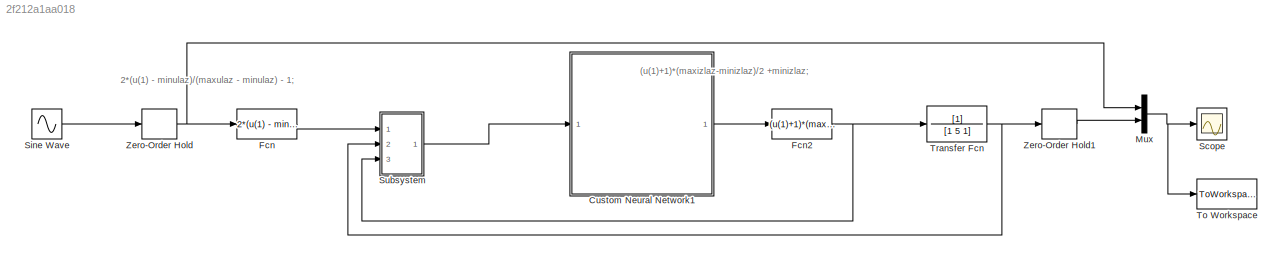
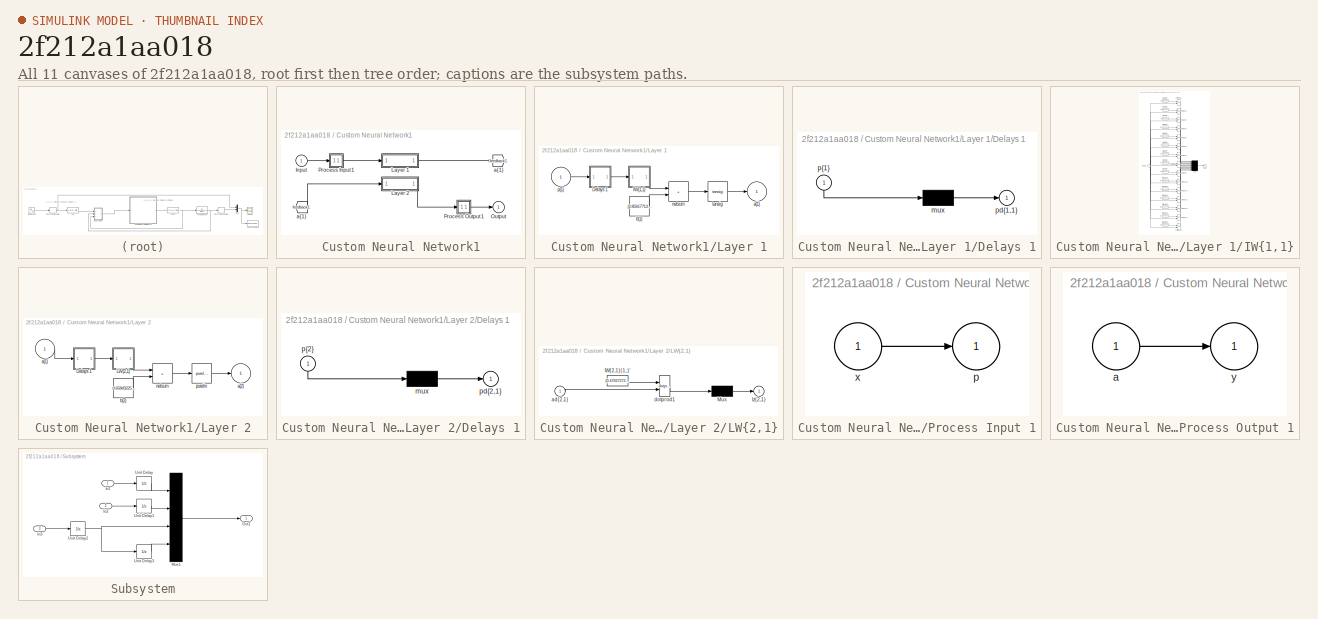
[diagram: thumbnail index - all 11 canvases of the model, root first then tree order]
MODEL slx_2f212a1aa018
KIND model
CONFIG AbsTol = auto
CONFIG EnableMultiTasking = off
CONFIG FixedStep = auto
CONFIG MaxStep = auto
CONFIG MinStep = auto
CONFIG RelTol = 1e-3
CONFIG SampleTimeConstraint = Unconstrained
CONFIG Solver = VariableStepAuto
CONFIG SolverName = VariableStepAuto
CONFIG StartTime = 0.0
CONFIG StopTime = 100
BLOCK [SubSystem] Custom Neural Network1
  Ports = [1, 1]
  RequestExecContextInheritance = off
BLOCK [From] Custom Neural Network1/ a{1} 
  GotoTag = feedback1
BLOCK [Inport] Custom Neural Network1/Input
  PortDimensions = 4
BLOCK [SubSystem] Custom Neural Network1/Layer 1
  Ports = [1, 1]
  RequestExecContextInheritance = off
BLOCK [SubSystem] Custom Neural Network1/Layer 1/Delays 1
  Ports = [1, 1]
  RequestExecContextInheritance = off
BLOCK [Mux] Custom Neural Network1/Layer 1/Delays 1/mux
  Inputs = 1
  Ports = [1, 1]
BLOCK [Outport] Custom Neural Network1/Layer 1/Delays 1/pd{1,1}
BLOCK [Inport] Custom Neural Network1/Layer 1/Delays 1/p{1}
  NameLocation = left
  PortDimensions = 4
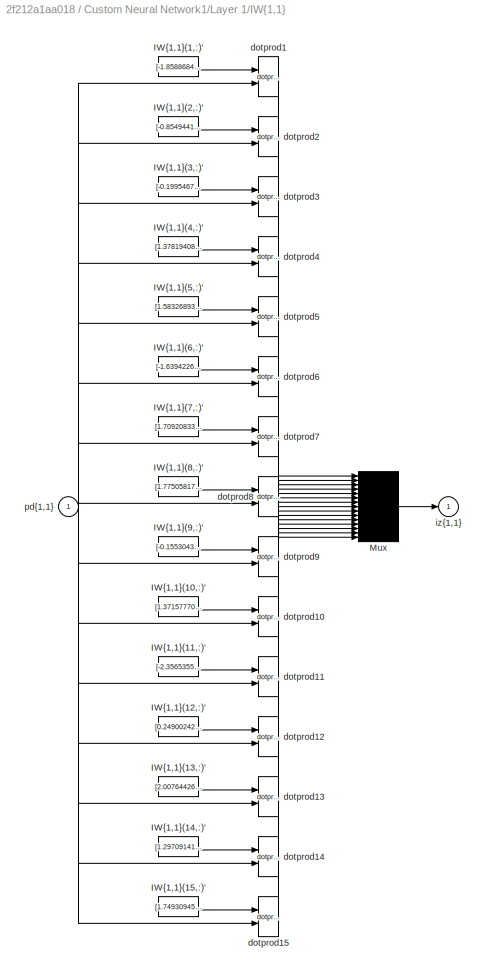
BLOCK [SubSystem] Custom Neural Network1/Layer 1/IW{1,1}
  Ports = [1, 1]
  RequestExecContextInheritance = off
BLOCK [Constant] Custom Neural Network1/Layer 1/IW{1,1}/IW{1,1}(1,:)'
  Value = [-1.85886840076805270882687182165682315826416015625;0.7727313637661747947049661888740956783294677734375;1.5671050239411388194099572501727379858493804931640625;-1.00245148982260712244851674768142402172088623046875]
BLOCK [Constant] Custom Neural Network1/Layer 1/IW{1,1}/IW{1,1}(10,:)'
  Value = [1.371577707021575331935991926002316176891326904296875;-1.4818581613467667335015676144394092261791229248046875;-1.4389971342347023242069781190366484224796295166015625;-1.11165116329290736274515438708476722240447998046875]
BLOCK [Constant] Custom Neural Network1/Layer 1/IW{1,1}/IW{1,1}(11,:)'
  Value = [-2.35653559399774881200073650688864290714263916015625;0.8651468489437619258097811325569637119770050048828125;-0.24336657567446995376059248883393593132495880126953125;1.160669847687730626972779646166600286960601806640625]
BLOCK [Constant] Custom Neural Network1/Layer 1/IW{1,1}/IW{1,1}(12,:)'
  Value = [0.24900242412155415561159088611020706593990325927734375;-1.7407651166176467683044393197633326053619384765625;-0.11526602097109499289739886762617970816791057586669921875;-1.118584207594488955095357596292160451412200927734375]
BLOCK [Constant] Custom Neural Network1/Layer 1/IW{1,1}/IW{1,1}(13,:)'
  Value = [2.00764426213082192163028594222851097583770751953125;-1.5596245818035725516637057808111421763896942138671875;0.68178496860637161081086787817184813320636749267578125;-0.08610576420403333319786298716280725784599781036376953125]
BLOCK [Constant] Custom Neural Network1/Layer 1/IW{1,1}/IW{1,1}(14,:)'
  Value = [1.29709141406278671837526417220942676067352294921875;-2.052239872283880828263136208988726139068603515625;0.6958292802997976256307310904958285391330718994140625;0.64604482025001053191459732261137105524539947509765625]
BLOCK [Constant] Custom Neural Network1/Layer 1/IW{1,1}/IW{1,1}(15,:)'
  Value = [1.7493094565411160257184519650763832032680511474609375;-1.3383549148256432825832007438293658196926116943359375;0.8888910426613245707727628541761077940464019775390625;1.3797909203194791416535736061632633209228515625]
BLOCK [Constant] Custom Neural Network1/Layer 1/IW{1,1}/IW{1,1}(2,:)'
  Value = [-0.854944101703656311741497120237909257411956787109375;-2.0181017959365750158440278028137981891632080078125;1.2844544079982507245318856803351081907749176025390625;1.21236426063586844037445189314894378185272216796875]
BLOCK [Constant] Custom Neural Network1/Layer 1/IW{1,1}/IW{1,1}(3,:)'
  Value = [-0.19954671494065745473989181846263818442821502685546875;1.74364656144823726435788557864725589752197265625;-1.0462541393621818119896715870709158480167388916015625;1.088731121046819350084433608571998775005340576171875]
BLOCK [Constant] Custom Neural Network1/Layer 1/IW{1,1}/IW{1,1}(4,:)'
  Value = [1.378194084099750416072538428124971687793731689453125;1.3077044405737134891154482829733751714229583740234375;1.302752937220793771899707280681468546390533447265625;-1.29753501528241432794175125309266149997711181640625]
BLOCK [Constant] Custom Neural Network1/Layer 1/IW{1,1}/IW{1,1}(5,:)'
  Value = [1.583268935300181201597524704993702471256256103515625;0.57261414749949235414305803715251386165618896484375;-1.5772514104129202738846515785553492605686187744140625;-1.2981368318279773443890690032276324927806854248046875]
BLOCK [Constant] Custom Neural Network1/Layer 1/IW{1,1}/IW{1,1}(6,:)'
  Value = [-1.6394226422302242696105167851783335208892822265625;2.153007919390976798723613683250732719898223876953125;-0.286804191203348601835187992037390358746051788330078125;0.39572240192895036248188489480526186525821685791015625]
BLOCK [Constant] Custom Neural Network1/Layer 1/IW{1,1}/IW{1,1}(7,:)'
  Value = [1.7092083309629659826356373741873539984226226806640625;0.83066163455131458714930658970843069255352020263671875;-0.1962658754182700360235713787915301509201526641845703125;1.9196442664466004668355481044272892177104949951171875]
BLOCK [Constant] Custom Neural Network1/Layer 1/IW{1,1}/IW{1,1}(8,:)'
  Value = [1.7750581738165400746964905920322053134441375732421875;-1.184043996768628037585813217447139322757720947265625;0.1094454799692407831468443646372179500758647918701171875;-0.11594682220914841186409915962940431199967861175537109375]
BLOCK [Constant] Custom Neural Network1/Layer 1/IW{1,1}/IW{1,1}(9,:)'
  Value = [-0.15530435683804066915314479047083295881748199462890625;1.220523226752049605892125327955000102519989013671875;2.34637708383834020509084439254365861415863037109375;0.50161552584053337167091513038030825555324554443359375]
BLOCK [Mux] Custom Neural Network1/Layer 1/IW{1,1}/Mux
  Inputs = 15
  Ports = [15, 1]
BLOCK [Reference] Custom Neural Network1/Layer 1/IW{1,1}/dotprod1  REF=neural/Weight Functions/dotprod
  Ports = [2, 1]
  SourceBlock = neural/Weight Functions/dotprod
  SourceProductBaseCode = NN
  SourceType = DOTPROD
BLOCK [Reference] Custom Neural Network1/Layer 1/IW{1,1}/dotprod10  REF=neural/Weight Functions/dotprod
  Ports = [2, 1]
  SourceBlock = neural/Weight Functions/dotprod
  SourceProductBaseCode = NN
  SourceType = DOTPROD
BLOCK [Reference] Custom Neural Network1/Layer 1/IW{1,1}/dotprod11  REF=neural/Weight Functions/dotprod
  Ports = [2, 1]
  SourceBlock = neural/Weight Functions/dotprod
  SourceProductBaseCode = NN
  SourceType = DOTPROD
BLOCK [Reference] Custom Neural Network1/Layer 1/IW{1,1}/dotprod12  REF=neural/Weight Functions/dotprod
  Ports = [2, 1]
  SourceBlock = neural/Weight Functions/dotprod
  SourceProductBaseCode = NN
  SourceType = DOTPROD
BLOCK [Reference] Custom Neural Network1/Layer 1/IW{1,1}/dotprod13  REF=neural/Weight Functions/dotprod
  Ports = [2, 1]
  SourceBlock = neural/Weight Functions/dotprod
  SourceProductBaseCode = NN
  SourceType = DOTPROD
BLOCK [Reference] Custom Neural Network1/Layer 1/IW{1,1}/dotprod14  REF=neural/Weight Functions/dotprod
  Ports = [2, 1]
  SourceBlock = neural/Weight Functions/dotprod
  SourceProductBaseCode = NN
  SourceType = DOTPROD
BLOCK [Reference] Custom Neural Network1/Layer 1/IW{1,1}/dotprod15  REF=neural/Weight Functions/dotprod
  Ports = [2, 1]
  SourceBlock = neural/Weight Functions/dotprod
  SourceProductBaseCode = NN
  SourceType = DOTPROD
BLOCK [Reference] Custom Neural Network1/Layer 1/IW{1,1}/dotprod2  REF=neural/Weight Functions/dotprod
  Ports = [2, 1]
  SourceBlock = neural/Weight Functions/dotprod
  SourceProductBaseCode = NN
  SourceType = DOTPROD
BLOCK [Reference] Custom Neural Network1/Layer 1/IW{1,1}/dotprod3  REF=neural/Weight Functions/dotprod
  Ports = [2, 1]
  SourceBlock = neural/Weight Functions/dotprod
  SourceProductBaseCode = NN
  SourceType = DOTPROD
BLOCK [Reference] Custom Neural Network1/Layer 1/IW{1,1}/dotprod4  REF=neural/Weight Functions/dotprod
  Ports = [2, 1]
  SourceBlock = neural/Weight Functions/dotprod
  SourceProductBaseCode = NN
  SourceType = DOTPROD
BLOCK [Reference] Custom Neural Network1/Layer 1/IW{1,1}/dotprod5  REF=neural/Weight Functions/dotprod
  Ports = [2, 1]
  SourceBlock = neural/Weight Functions/dotprod
  SourceProductBaseCode = NN
  SourceType = DOTPROD
BLOCK [Reference] Custom Neural Network1/Layer 1/IW{1,1}/dotprod6  REF=neural/Weight Functions/dotprod
  Ports = [2, 1]
  SourceBlock = neural/Weight Functions/dotprod
  SourceProductBaseCode = NN
  SourceType = DOTPROD
BLOCK [Reference] Custom Neural Network1/Layer 1/IW{1,1}/dotprod7  REF=neural/Weight Functions/dotprod
  Ports = [2, 1]
  SourceBlock = neural/Weight Functions/dotprod
  SourceProductBaseCode = NN
  SourceType = DOTPROD
BLOCK [Reference] Custom Neural Network1/Layer 1/IW{1,1}/dotprod8  REF=neural/Weight Functions/dotprod
  Ports = [2, 1]
  SourceBlock = neural/Weight Functions/dotprod
  SourceProductBaseCode = NN
  SourceType = DOTPROD
BLOCK [Reference] Custom Neural Network1/Layer 1/IW{1,1}/dotprod9  REF=neural/Weight Functions/dotprod
  Ports = [2, 1]
  SourceBlock = neural/Weight Functions/dotprod
  SourceProductBaseCode = NN
  SourceType = DOTPROD
BLOCK [Outport] Custom Neural Network1/Layer 1/IW{1,1}/iz{1,1}
BLOCK [Inport] Custom Neural Network1/Layer 1/IW{1,1}/pd{1,1}
  PortDimensions = 4
BLOCK [Outport] Custom Neural Network1/Layer 1/a{1}
  InitialOutput = [0;0;0;0;0;0;0;0;0;0;0;0;0;0;0]
BLOCK [Constant] Custom Neural Network1/Layer 1/b{1}
  Value = [2.8561771300222034142279881052672863006591796875;2.180791428627662842387735508964397013187408447265625;-1.8841928418453928184561618763837032020092010498046875;-1.2515842022739047667556633314234204590320587158203125;-1.169543425604398390049709632876329123973846435546875;0.69360154133094253925406746930093504488468170166015625;-0.424884747143072394326424046084866859018802642822265625;0.0647214147343...<+433ch>
BLOCK [Sum] Custom Neural Network1/Layer 1/netsum
  IconShape = rectangular
  InputSameDT = on
  Inputs = 2
  OutDataTypeStr = Inherit: Same as first input
  Ports = [2, 1]
  SaturateOnIntegerOverflow = on
BLOCK [Inport] Custom Neural Network1/Layer 1/p{1}
  PortDimensions = 4
BLOCK [Reference] Custom Neural Network1/Layer 1/tansig  REF=neural/Transfer Functions/tansig
  Ports = [1, 1]
  SourceBlock = neural/Transfer Functions/tansig
  SourceProductBaseCode = NN
  SourceType = TANSIG
BLOCK [SubSystem] Custom Neural Network1/Layer 2
  Ports = [1, 1]
  RequestExecContextInheritance = off
BLOCK [SubSystem] Custom Neural Network1/Layer 2/Delays 1
  Ports = [1, 1]
  RequestExecContextInheritance = off
BLOCK [Mux] Custom Neural Network1/Layer 2/Delays 1/mux
  Inputs = 1
  Ports = [1, 1]
BLOCK [Outport] Custom Neural Network1/Layer 2/Delays 1/pd{2,1}
BLOCK [Inport] Custom Neural Network1/Layer 2/Delays 1/p{2}
  NameLocation = left
  PortDimensions = 15
BLOCK [SubSystem] Custom Neural Network1/Layer 2/LW{2,1}
  Ports = [1, 1]
  RequestExecContextInheritance = off
BLOCK [Constant] Custom Neural Network1/Layer 2/LW{2,1}/IW{2,1}(1,:)'
  Value = [0.478272726468320197312777963816188275814056396484375;0.00714313761076878529776568171882900060154497623443603515625;0.284086583707173712110005681097391061484813690185546875;0.018281760870019224396454404768519452773034572601318359375;0.0103267009373419170470409511608522734604775905609130859375;0.43195959296125130411070358604774810373783111572265625;-0.0034380815397924077703173395548219559714198112...<+487ch>
BLOCK [Mux] Custom Neural Network1/Layer 2/LW{2,1}/Mux
  Inputs = 1
  Ports = [1, 1]
BLOCK [Inport] Custom Neural Network1/Layer 2/LW{2,1}/ad{2,1}
  PortDimensions = 15
BLOCK [Reference] Custom Neural Network1/Layer 2/LW{2,1}/dotprod1  REF=neural/Weight Functions/dotprod
  Ports = [2, 1]
  SourceBlock = neural/Weight Functions/dotprod
  SourceProductBaseCode = NN
  SourceType = DOTPROD
BLOCK [Outport] Custom Neural Network1/Layer 2/LW{2,1}/lz{2,1}
BLOCK [Inport] Custom Neural Network1/Layer 2/a{1} 
  PortDimensions = 15
BLOCK [Outport] Custom Neural Network1/Layer 2/a{2}
  InitialOutput = 0
BLOCK [Constant] Custom Neural Network1/Layer 2/b{2}
  Value = -0.6584322562583591054163889566552825272083282470703125
BLOCK [Sum] Custom Neural Network1/Layer 2/netsum
  IconShape = rectangular
  InputSameDT = on
  Inputs = 2
  OutDataTypeStr = Inherit: Same as first input
  Ports = [2, 1]
  SaturateOnIntegerOverflow = on
BLOCK [Reference] Custom Neural Network1/Layer 2/purelin  REF=neural/Transfer Functions/purelin
  Ports = [1, 1]
  SourceBlock = neural/Transfer Functions/purelin
  SourceProductBaseCode = NN
  SourceType = PURELIN
BLOCK [Outport] Custom Neural Network1/Output
  InitialOutput = 0
BLOCK [SubSystem] Custom Neural Network1/Process Input 1
  Ports = [1, 1]
  RequestExecContextInheritance = off
BLOCK [Outport] Custom Neural Network1/Process Input 1/p
  PortDimensions = 4
BLOCK [Inport] Custom Neural Network1/Process Input 1/x
  PortDimensions = 4
BLOCK [SubSystem] Custom Neural Network1/Process Output 1
  Ports = [1, 1]
  RequestExecContextInheritance = off
BLOCK [Inport] Custom Neural Network1/Process Output 1/a
  PortDimensions = 1
BLOCK [Outport] Custom Neural Network1/Process Output 1/y
  PortDimensions = 1
BLOCK [Goto] Custom Neural Network1/a{1}
  GotoTag = feedback1
BLOCK [Fcn] Fcn
  Expr = 2*(u(1) - minulaz)/(maxulaz - minulaz) - 1;
BLOCK [Fcn] Fcn2
  Expr = (u(1)+1)*(maxizlaz-minizlaz)/2 +minizlaz;
BLOCK [Mux] Mux
  DisplayOption = bar
  Inputs = 2
  Ports = [2, 1]
BLOCK [Scope] Scope
  Floating = off
  NumInputPorts = 1
  Ports = [1]
  ScopeSpecificationString = Simulink.scopes.TimeScopeBlockCfg('CurrentConfiguration', extmgr.ConfigurationSet(extmgr.Configuration('Core','General UI',true),extmgr.Configuration('Core','Source UI',true),extmgr.Configuration('Sources','WiredSimulink',true,'DataLoggingSaveFormat','StructureWithTime','DataLoggingLimitDataPoints',true,'DataLoggingDecimation','1','DataLoggingDecimateData',true),extmgr.Configuration('Visuals','Tim...<+1668ch>
BLOCK [Sin] Sine Wave
  Amplitude = 2
  Frequency = 0.25
  Ports = [0, 1]
  SampleTime = 0.1
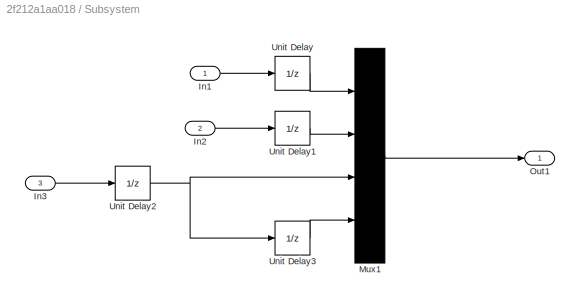
BLOCK [SubSystem] Subsystem
  Ports = [3, 1]
  RequestExecContextInheritance = off
BLOCK [Inport] Subsystem/In1
BLOCK [Inport] Subsystem/In2
  Port = 2
BLOCK [Inport] Subsystem/In3
  Port = 3
BLOCK [Mux] Subsystem/Mux1
  DisplayOption = bar
  Ports = [4, 1]
BLOCK [Outport] Subsystem/Out1
BLOCK [UnitDelay] Subsystem/Unit Delay
  HasFrameUpgradeWarning = on
  SampleTime = -1
BLOCK [UnitDelay] Subsystem/Unit Delay1
  HasFrameUpgradeWarning = on
  SampleTime = -1
BLOCK [UnitDelay] Subsystem/Unit Delay2
  HasFrameUpgradeWarning = on
  SampleTime = -1
BLOCK [UnitDelay] Subsystem/Unit Delay3
  HasFrameUpgradeWarning = on
  SampleTime = -1
BLOCK [ToWorkspace] To Workspace
  MaxDataPoints = inf
  Ports = [1]
  SampleTime = -1
  VariableName = y
BLOCK [TransferFcn] Transfer Fcn
  Denominator = [1 5 1]
BLOCK [ZeroOrderHold] Zero-Order Hold
  SampleTime = 0.1
BLOCK [ZeroOrderHold] Zero-Order Hold1
  SampleTime = 0.1
ANNOTATION (root): (u(1)+1)*(maxizlaz-minizlaz)/2 +minizlaz;
ANNOTATION (root): 2*(u(1) - minulaz)/(maxulaz - minulaz) - 1;
LINE Custom Neural Network1/ a{1} :1 -> Custom Neural Network1/Layer 2:1
LINE Custom Neural Network1/Input:1 -> Custom Neural Network1/Process Input 1:1
LINE Custom Neural Network1/Layer 1/Delays 1/mux:1 -> Custom Neural Network1/Layer 1/Delays 1/pd{1,1}:1
LINE Custom Neural Network1/Layer 1/Delays 1/p{1}:1 -> Custom Neural Network1/Layer 1/Delays 1/mux:1
LINE Custom Neural Network1/Layer 1/Delays 1:1 -> Custom Neural Network1/Layer 1/IW{1,1}:1
LINE Custom Neural Network1/Layer 1/IW{1,1}/IW{1,1}(1,:)':1 -> Custom Neural Network1/Layer 1/IW{1,1}/dotprod1:1
LINE Custom Neural Network1/Layer 1/IW{1,1}/IW{1,1}(10,:)':1 -> Custom Neural Network1/Layer 1/IW{1,1}/dotprod10:1
LINE Custom Neural Network1/Layer 1/IW{1,1}/IW{1,1}(11,:)':1 -> Custom Neural Network1/Layer 1/IW{1,1}/dotprod11:1
LINE Custom Neural Network1/Layer 1/IW{1,1}/IW{1,1}(12,:)':1 -> Custom Neural Network1/Layer 1/IW{1,1}/dotprod12:1
LINE Custom Neural Network1/Layer 1/IW{1,1}/IW{1,1}(13,:)':1 -> Custom Neural Network1/Layer 1/IW{1,1}/dotprod13:1
LINE Custom Neural Network1/Layer 1/IW{1,1}/IW{1,1}(14,:)':1 -> Custom Neural Network1/Layer 1/IW{1,1}/dotprod14:1
LINE Custom Neural Network1/Layer 1/IW{1,1}/IW{1,1}(15,:)':1 -> Custom Neural Network1/Layer 1/IW{1,1}/dotprod15:1
LINE Custom Neural Network1/Layer 1/IW{1,1}/IW{1,1}(2,:)':1 -> Custom Neural Network1/Layer 1/IW{1,1}/dotprod2:1
LINE Custom Neural Network1/Layer 1/IW{1,1}/IW{1,1}(3,:)':1 -> Custom Neural Network1/Layer 1/IW{1,1}/dotprod3:1
LINE Custom Neural Network1/Layer 1/IW{1,1}/IW{1,1}(4,:)':1 -> Custom Neural Network1/Layer 1/IW{1,1}/dotprod4:1
LINE Custom Neural Network1/Layer 1/IW{1,1}/IW{1,1}(5,:)':1 -> Custom Neural Network1/Layer 1/IW{1,1}/dotprod5:1
LINE Custom Neural Network1/Layer 1/IW{1,1}/IW{1,1}(6,:)':1 -> Custom Neural Network1/Layer 1/IW{1,1}/dotprod6:1
LINE Custom Neural Network1/Layer 1/IW{1,1}/IW{1,1}(7,:)':1 -> Custom Neural Network1/Layer 1/IW{1,1}/dotprod7:1
LINE Custom Neural Network1/Layer 1/IW{1,1}/IW{1,1}(8,:)':1 -> Custom Neural Network1/Layer 1/IW{1,1}/dotprod8:1
LINE Custom Neural Network1/Layer 1/IW{1,1}/IW{1,1}(9,:)':1 -> Custom Neural Network1/Layer 1/IW{1,1}/dotprod9:1
LINE Custom Neural Network1/Layer 1/IW{1,1}/Mux:1 -> Custom Neural Network1/Layer 1/IW{1,1}/iz{1,1}:1
LINE Custom Neural Network1/Layer 1/IW{1,1}/dotprod10:1 -> Custom Neural Network1/Layer 1/IW{1,1}/Mux:10
LINE Custom Neural Network1/Layer 1/IW{1,1}/dotprod11:1 -> Custom Neural Network1/Layer 1/IW{1,1}/Mux:11
LINE Custom Neural Network1/Layer 1/IW{1,1}/dotprod12:1 -> Custom Neural Network1/Layer 1/IW{1,1}/Mux:12
LINE Custom Neural Network1/Layer 1/IW{1,1}/dotprod13:1 -> Custom Neural Network1/Layer 1/IW{1,1}/Mux:13
LINE Custom Neural Network1/Layer 1/IW{1,1}/dotprod14:1 -> Custom Neural Network1/Layer 1/IW{1,1}/Mux:14
LINE Custom Neural Network1/Layer 1/IW{1,1}/dotprod15:1 -> Custom Neural Network1/Layer 1/IW{1,1}/Mux:15
LINE Custom Neural Network1/Layer 1/IW{1,1}/dotprod1:1 -> Custom Neural Network1/Layer 1/IW{1,1}/Mux:1
LINE Custom Neural Network1/Layer 1/IW{1,1}/dotprod2:1 -> Custom Neural Network1/Layer 1/IW{1,1}/Mux:2
LINE Custom Neural Network1/Layer 1/IW{1,1}/dotprod3:1 -> Custom Neural Network1/Layer 1/IW{1,1}/Mux:3
LINE Custom Neural Network1/Layer 1/IW{1,1}/dotprod4:1 -> Custom Neural Network1/Layer 1/IW{1,1}/Mux:4
LINE Custom Neural Network1/Layer 1/IW{1,1}/dotprod5:1 -> Custom Neural Network1/Layer 1/IW{1,1}/Mux:5
LINE Custom Neural Network1/Layer 1/IW{1,1}/dotprod6:1 -> Custom Neural Network1/Layer 1/IW{1,1}/Mux:6
LINE Custom Neural Network1/Layer 1/IW{1,1}/dotprod7:1 -> Custom Neural Network1/Layer 1/IW{1,1}/Mux:7
LINE Custom Neural Network1/Layer 1/IW{1,1}/dotprod8:1 -> Custom Neural Network1/Layer 1/IW{1,1}/Mux:8
LINE Custom Neural Network1/Layer 1/IW{1,1}/dotprod9:1 -> Custom Neural Network1/Layer 1/IW{1,1}/Mux:9
NET Custom Neural Network1/Layer 1/IW{1,1}/pd{1,1}:1 -> Custom Neural Network1/Layer 1/IW{1,1}/dotprod10:2, Custom Neural Network1/Layer 1/IW{1,1}/dotprod11:2, Custom Neural Network1/Layer 1/IW{1,1}/dotprod12:2, Custom Neural Network1/Layer 1/IW{1,1}/dotprod13:2, Custom Neural Network1/Layer 1/IW{1,1}/dotprod14:2, Custom Neural Network1/Layer 1/IW{1,1}/dotprod15:2, Custom Neural Network1/Layer 1/IW{1,1}/dotprod1:2, Custom Neural Network1/Layer 1/IW{1,1}/dotprod2:2, Custom Neural Network1/Layer 1/IW{1,1}/dotprod3:2, Custom Neural Network1/Layer 1/IW{1,1}/dotprod4:2, Custom Neural Network1/Layer 1/IW{1,1}/dotprod5:2, Custom Neural Network1/Layer 1/IW{1,1}/dotprod6:2, Custom Neural Network1/Layer 1/IW{1,1}/dotprod7:2, Custom Neural Network1/Layer 1/IW{1,1}/dotprod8:2, Custom Neural Network1/Layer 1/IW{1,1}/dotprod9:2
LINE Custom Neural Network1/Layer 1/IW{1,1}:1 -> Custom Neural Network1/Layer 1/netsum:1
LINE Custom Neural Network1/Layer 1/b{1}:1 -> Custom Neural Network1/Layer 1/netsum:2
LINE Custom Neural Network1/Layer 1/netsum:1 -> Custom Neural Network1/Layer 1/tansig:1
LINE Custom Neural Network1/Layer 1/p{1}:1 -> Custom Neural Network1/Layer 1/Delays 1:1
LINE Custom Neural Network1/Layer 1/tansig:1 -> Custom Neural Network1/Layer 1/a{1}:1
LINE Custom Neural Network1/Layer 1:1 -> Custom Neural Network1/a{1}:1
LINE Custom Neural Network1/Layer 2/Delays 1/mux:1 -> Custom Neural Network1/Layer 2/Delays 1/pd{2,1}:1
LINE Custom Neural Network1/Layer 2/Delays 1/p{2}:1 -> Custom Neural Network1/Layer 2/Delays 1/mux:1
LINE Custom Neural Network1/Layer 2/Delays 1:1 -> Custom Neural Network1/Layer 2/LW{2,1}:1
LINE Custom Neural Network1/Layer 2/LW{2,1}/IW{2,1}(1,:)':1 -> Custom Neural Network1/Layer 2/LW{2,1}/dotprod1:1
LINE Custom Neural Network1/Layer 2/LW{2,1}/Mux:1 -> Custom Neural Network1/Layer 2/LW{2,1}/lz{2,1}:1
LINE Custom Neural Network1/Layer 2/LW{2,1}/ad{2,1}:1 -> Custom Neural Network1/Layer 2/LW{2,1}/dotprod1:2
LINE Custom Neural Network1/Layer 2/LW{2,1}/dotprod1:1 -> Custom Neural Network1/Layer 2/LW{2,1}/Mux:1
LINE Custom Neural Network1/Layer 2/LW{2,1}:1 -> Custom Neural Network1/Layer 2/netsum:1
LINE Custom Neural Network1/Layer 2/a{1} :1 -> Custom Neural Network1/Layer 2/Delays 1:1
LINE Custom Neural Network1/Layer 2/b{2}:1 -> Custom Neural Network1/Layer 2/netsum:2
LINE Custom Neural Network1/Layer 2/netsum:1 -> Custom Neural Network1/Layer 2/purelin:1
LINE Custom Neural Network1/Layer 2/purelin:1 -> Custom Neural Network1/Layer 2/a{2}:1
LINE Custom Neural Network1/Layer 2:1 -> Custom Neural Network1/Process Output 1:1
LINE Custom Neural Network1/Process Input 1/x:1 -> Custom Neural Network1/Process Input 1/p:1
LINE Custom Neural Network1/Process Input 1:1 -> Custom Neural Network1/Layer 1:1
LINE Custom Neural Network1/Process Output 1/a:1 -> Custom Neural Network1/Process Output 1/y:1
LINE Custom Neural Network1/Process Output 1:1 -> Custom Neural Network1/Output:1
LINE Custom Neural Network1:1 -> Fcn2:1
NET Fcn2:1 -> Subsystem:3, Transfer Fcn:1
LINE Fcn:1 -> Subsystem:1
NET Mux:1 -> Scope:1, To Workspace:1
LINE Sine Wave:1 -> Zero-Order Hold:1
LINE Subsystem/In1:1 -> Subsystem/Unit Delay:1
LINE Subsystem/In2:1 -> Subsystem/Unit Delay1:1
LINE Subsystem/In3:1 -> Subsystem/Unit Delay2:1
LINE Subsystem/Mux1:1 -> Subsystem/Out1:1
LINE Subsystem/Unit Delay1:1 -> Subsystem/Mux1:2
NET Subsystem/Unit Delay2:1 -> Subsystem/Mux1:3, Subsystem/Unit Delay3:1
LINE Subsystem/Unit Delay3:1 -> Subsystem/Mux1:4
LINE Subsystem/Unit Delay:1 -> Subsystem/Mux1:1
LINE Subsystem:1 -> Custom Neural Network1:1
NET Transfer Fcn:1 -> Subsystem:2, Zero-Order Hold1:1
LINE Zero-Order Hold1:1 -> Mux:2
NET Zero-Order Hold:1 -> Fcn:1, Mux:1
note: NET lines group one-source signal fan-out (src -> all destinations, sorted); 1:1 wires keep LINE
